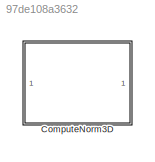
MODEL slx_97de108a3632
KIND library
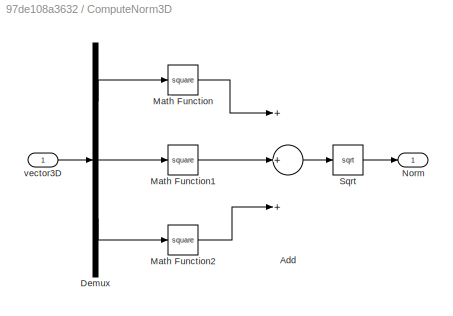
BLOCK [SubSystem] ComputeNorm3D
  Ports = [1, 1]
  RequestExecContextInheritance = off
BLOCK [Sum] ComputeNorm3D/Add
  InputSameDT = off
  Inputs = +++
  OutDataTypeStr = Inherit: Inherit via internal rule
  Ports = [3, 1]
  SaturateOnIntegerOverflow = off
BLOCK [Demux] ComputeNorm3D/Demux
  DisplayOption = bar
  Outputs = 3
  Ports = [1, 3]
BLOCK [Math] ComputeNorm3D/Math Function
  Operator = square
  Ports = [1, 1]
BLOCK [Math] ComputeNorm3D/Math Function1
  Operator = square
  Ports = [1, 1]
BLOCK [Math] ComputeNorm3D/Math Function2
  Operator = square
  Ports = [1, 1]
BLOCK [Outport] ComputeNorm3D/Norm
  IconDisplay = Port number
BLOCK [Sqrt] ComputeNorm3D/Sqrt
BLOCK [Inport] ComputeNorm3D/vector3D
  IconDisplay = Port number
LINE ComputeNorm3D/Add:1 -> ComputeNorm3D/Sqrt:1
LINE ComputeNorm3D/Demux:1 -> ComputeNorm3D/Math Function:1
LINE ComputeNorm3D/Demux:2 -> ComputeNorm3D/Math Function1:1
LINE ComputeNorm3D/Demux:3 -> ComputeNorm3D/Math Function2:1
LINE ComputeNorm3D/Math Function1:1 -> ComputeNorm3D/Add:2
LINE ComputeNorm3D/Math Function2:1 -> ComputeNorm3D/Add:3
LINE ComputeNorm3D/Math Function:1 -> ComputeNorm3D/Add:1
LINE ComputeNorm3D/Sqrt:1 -> ComputeNorm3D/Norm:1
LINE ComputeNorm3D/vector3D:1 -> ComputeNorm3D/Demux:1
